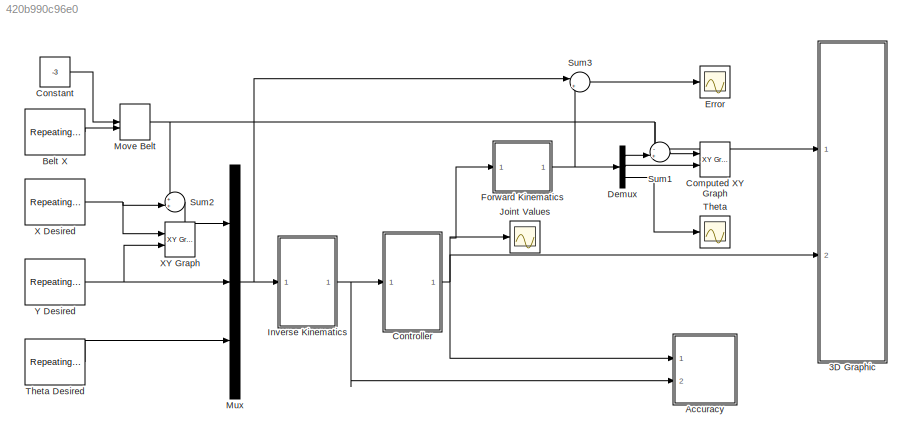
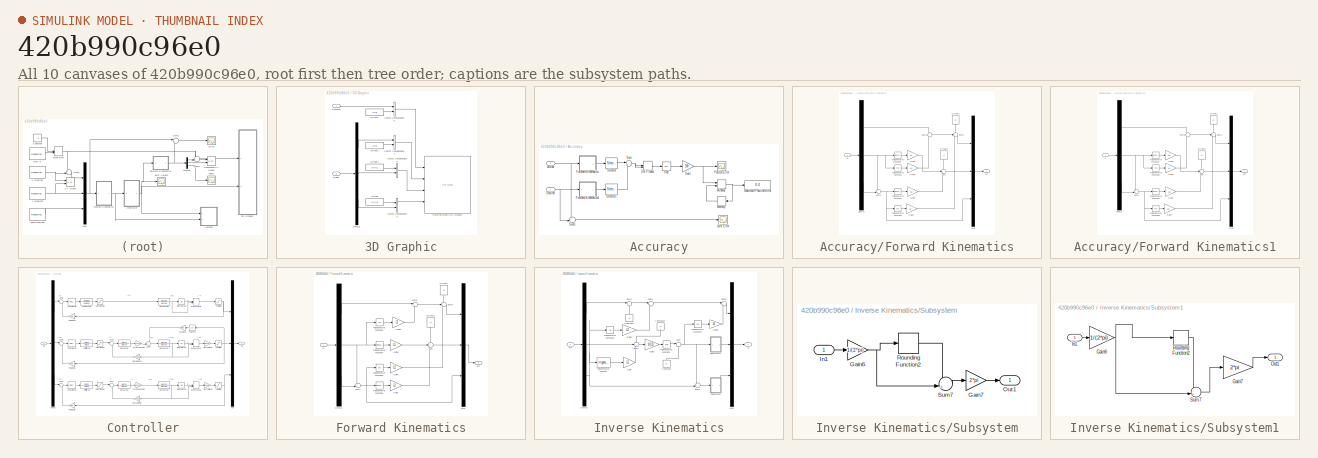
[diagram: thumbnail index - all 10 canvases of the model, root first then tree order]
MODEL slx_420b990c96e0
KIND model
CONFIG AbsTol = auto
CONFIG EnableMultiTasking = on
CONFIG FixedStep = auto
CONFIG InitFcn = Factory
CONFIG MaxStep = auto
CONFIG MinStep = auto
CONFIG PreLoadFcn = Factory
CONFIG RelTol = 1e-3
CONFIG SampleTimeConstraint = Unconstrained
CONFIG Solver = ode45
CONFIG SolverName = ode45
CONFIG StartTime = 0.0
CONFIG StopTime = 60
BLOCK [SubSystem] 3D Graphic
  Ports = [2]
  RequestExecContextInheritance = off
  Variant = off
BLOCK [Inport] 3D Graphic/Conveyor
  IconDisplay = Port number
BLOCK [Demux] 3D Graphic/Demux
  DisplayOption = bar
  Outputs = 3
  Ports = [1, 3]
BLOCK [Constant] 3D Graphic/Offset
  Value = [0 0 1]
BLOCK [Constant] 3D Graphic/Offset1
  Value = [0 0 1]
BLOCK [Constant] 3D Graphic/Offset2
  Value = [0 0]
BLOCK [Constant] 3D Graphic/Offset3
  Value = [0 0]
BLOCK [Reference] 3D Graphic/Painting Booth 3-D Graphic  REF=vrlib/VR Sink
  InstantiateOnLoad = on
  Ports = [4]
  SourceBlock = vrlib/VR Sink
  SourceType = Virtual Reality Sink
BLOCK [Inport] 3D Graphic/Robot
  IconDisplay = Port number
  Port = 2
BLOCK [Concatenate] 3D Graphic/Vector Concatenate1
  Ports = [2, 1]
BLOCK [Concatenate] 3D Graphic/Vector Concatenate2
  Ports = [2, 1]
BLOCK [Concatenate] 3D Graphic/Vector Concatenate3
  Ports = [2, 1]
BLOCK [Concatenate] 3D Graphic/Vector Concatenate5
  Ports = [2, 1]
BLOCK [SubSystem] Accuracy
  Ports = [2]
  RequestExecContextInheritance = off
  Variant = off
BLOCK [Inport] Accuracy/Actual
  IconDisplay = Port number
BLOCK [Inport] Accuracy/Desired
  IconDisplay = Port number
  Port = 2
BLOCK [DotProduct] Accuracy/Dot Product
  OutDataTypeStr = Inherit: Inherit via internal rule
BLOCK [SubSystem] Accuracy/Forward Kinematics
  Ports = [1, 1]
  RequestExecContextInheritance = off
  Variant = off
BLOCK [Demux] Accuracy/Forward Kinematics/Demux
  DisplayOption = bar
  Outputs = 3
  Ports = [1, 3]
BLOCK [Gain] Accuracy/Forward Kinematics/Gain1
  Gain = L2
  OutDataTypeStr = Inherit: Inherit via internal rule
  ParamDataTypeStr = Inherit: Inherit via internal rule
  SaturateOnIntegerOverflow = off
BLOCK [Gain] Accuracy/Forward Kinematics/Gain3
  Gain = L1
  OutDataTypeStr = Inherit: Inherit via internal rule
  ParamDataTypeStr = Inherit: Inherit via internal rule
  SaturateOnIntegerOverflow = off
BLOCK [Gain] Accuracy/Forward Kinematics/Gain4
  Gain = L2
  OutDataTypeStr = Inherit: Inherit via internal rule
  ParamDataTypeStr = Inherit: Inherit via internal rule
  SaturateOnIntegerOverflow = off
BLOCK [Gain] Accuracy/Forward Kinematics/Gain5
  Gain = L1
  OutDataTypeStr = Inherit: Inherit via internal rule
  ParamDataTypeStr = Inherit: Inherit via internal rule
  SaturateOnIntegerOverflow = off
BLOCK [Mux] Accuracy/Forward Kinematics/Mux
  DisplayOption = bar
  Inputs = 3
  Ports = [3, 1]
BLOCK [Constant] Accuracy/Forward Kinematics/Offset1
  Value = L2
BLOCK [Constant] Accuracy/Forward Kinematics/Offset2
  Value = L1
BLOCK [Inport] Accuracy/Forward Kinematics/Q
  IconDisplay = Port number
BLOCK [Sum] Accuracy/Forward Kinematics/Sum
  IconShape = round
  InputSameDT = off
  Inputs = +++
  OutDataTypeStr = Inherit: Inherit via internal rule
  Ports = [3, 1]
  SaturateOnIntegerOverflow = off
BLOCK [Sum] Accuracy/Forward Kinematics/Sum1
  IconShape = round
  InputSameDT = off
  Inputs = ++|
  OutDataTypeStr = Inherit: Inherit via internal rule
  Ports = [2, 1]
  SaturateOnIntegerOverflow = off
BLOCK [Sum] Accuracy/Forward Kinematics/Sum5
  IconShape = round
  InputSameDT = off
  Inputs = +|+
  OutDataTypeStr = Inherit: Inherit via internal rule
  Ports = [2, 1]
  SaturateOnIntegerOverflow = off
BLOCK [Sum] Accuracy/Forward Kinematics/Sum6
  IconShape = round
  InputSameDT = off
  Inputs = -++
  OutDataTypeStr = Inherit: Inherit via internal rule
  Ports = [3, 1]
  SaturateOnIntegerOverflow = off
BLOCK [Trigonometry] Accuracy/Forward Kinematics/Trigonometric Function1
  Ports = [1, 1]
BLOCK [Trigonometry] Accuracy/Forward Kinematics/Trigonometric Function2
  Operator = cos
  Ports = [1, 1]
BLOCK [Trigonometry] Accuracy/Forward Kinematics/Trigonometric Function3
  Operator = cos
  Ports = [1, 1]
BLOCK [Trigonometry] Accuracy/Forward Kinematics/Trigonometric Function4
  Ports = [1, 1]
BLOCK [Outport] Accuracy/Forward Kinematics/XYT
  IconDisplay = Port number
BLOCK [SubSystem] Accuracy/Forward Kinematics1
  Ports = [1, 1]
  RequestExecContextInheritance = off
  Variant = off
BLOCK [Demux] Accuracy/Forward Kinematics1/Demux
  DisplayOption = bar
  Outputs = 3
  Ports = [1, 3]
BLOCK [Gain] Accuracy/Forward Kinematics1/Gain1
  Gain = L2
  OutDataTypeStr = Inherit: Inherit via internal rule
  ParamDataTypeStr = Inherit: Inherit via internal rule
  SaturateOnIntegerOverflow = off
BLOCK [Gain] Accuracy/Forward Kinematics1/Gain3
  Gain = L1
  OutDataTypeStr = Inherit: Inherit via internal rule
  ParamDataTypeStr = Inherit: Inherit via internal rule
  SaturateOnIntegerOverflow = off
BLOCK [Gain] Accuracy/Forward Kinematics1/Gain4
  Gain = L2
  OutDataTypeStr = Inherit: Inherit via internal rule
  ParamDataTypeStr = Inherit: Inherit via internal rule
  SaturateOnIntegerOverflow = off
BLOCK [Gain] Accuracy/Forward Kinematics1/Gain5
  Gain = L1
  OutDataTypeStr = Inherit: Inherit via internal rule
  ParamDataTypeStr = Inherit: Inherit via internal rule
  SaturateOnIntegerOverflow = off
BLOCK [Mux] Accuracy/Forward Kinematics1/Mux
  DisplayOption = bar
  Inputs = 3
  Ports = [3, 1]
BLOCK [Constant] Accuracy/Forward Kinematics1/Offset1
  Value = L2
BLOCK [Constant] Accuracy/Forward Kinematics1/Offset2
  Value = L1
BLOCK [Inport] Accuracy/Forward Kinematics1/Q
  IconDisplay = Port number
BLOCK [Sum] Accuracy/Forward Kinematics1/Sum
  IconShape = round
  InputSameDT = off
  Inputs = +++
  OutDataTypeStr = Inherit: Inherit via internal rule
  Ports = [3, 1]
  SaturateOnIntegerOverflow = off
BLOCK [Sum] Accuracy/Forward Kinematics1/Sum1
  IconShape = round
  InputSameDT = off
  Inputs = ++|
  OutDataTypeStr = Inherit: Inherit via internal rule
  Ports = [2, 1]
  SaturateOnIntegerOverflow = off
BLOCK [Sum] Accuracy/Forward Kinematics1/Sum5
  IconShape = round
  InputSameDT = off
  Inputs = +|+
  OutDataTypeStr = Inherit: Inherit via internal rule
  Ports = [2, 1]
  SaturateOnIntegerOverflow = off
BLOCK [Sum] Accuracy/Forward Kinematics1/Sum6
  IconShape = round
  InputSameDT = off
  Inputs = -++
  OutDataTypeStr = Inherit: Inherit via internal rule
  Ports = [3, 1]
  SaturateOnIntegerOverflow = off
BLOCK [Trigonometry] Accuracy/Forward Kinematics1/Trigonometric Function1
  Ports = [1, 1]
BLOCK [Trigonometry] Accuracy/Forward Kinematics1/Trigonometric Function2
  Operator = cos
  Ports = [1, 1]
BLOCK [Trigonometry] Accuracy/Forward Kinematics1/Trigonometric Function3
  Operator = cos
  Ports = [1, 1]
BLOCK [Trigonometry] Accuracy/Forward Kinematics1/Trigonometric Function4
  Ports = [1, 1]
BLOCK [Outport] Accuracy/Forward Kinematics1/XYT
  IconDisplay = Port number
BLOCK [Gain] Accuracy/Gain
  Gain = 100
  OutDataTypeStr = Inherit: Inherit via internal rule
  ParamDataTypeStr = Inherit: Inherit via internal rule
  SaturateOnIntegerOverflow = off
BLOCK [Scope] Accuracy/Joint Error
  NumInputPorts = 1
  Ports = [1]
  ScopeSpecificationString = Simulink.scopes.TimeScopeBlockCfg('CurrentConfiguration', extmgr.ConfigurationSet(extmgr.Configuration('Core','General UI',true),extmgr.Configuration('Core','Source UI',true),extmgr.Configuration('Sources','WiredSimulink',true,'DataLoggingVariableName','ScopeData3','DataLoggingLimitDataPoints',true,'DataLoggingSaveFormat','Array','DataLoggingDecimation','1','DataLoggingDecimateData',true),extmgr.C...<+1730ch>
BLOCK [Display] Accuracy/Maximum Position Error
  Decimation = 1
  Ports = [1]
BLOCK [Memory] Accuracy/Memory
BLOCK [MinMax] Accuracy/MinMax
  Function = max
  InputSameDT = off
  Inputs = 2
  Ports = [2, 1]
  SaturateOnIntegerOverflow = off
BLOCK [Scope] Accuracy/Positon Error
  NumInputPorts = 1
  Ports = [1]
  ScopeSpecificationString = Simulink.scopes.TimeScopeBlockCfg('CurrentConfiguration', extmgr.ConfigurationSet(extmgr.Configuration('Core','General UI',true),extmgr.Configuration('Core','Source UI',true),extmgr.Configuration('Sources','WiredSimulink',true,'DataLoggingVariableName','ScopeData5','DataLoggingLimitDataPoints',true,'DataLoggingSaveFormat','Array','DataLoggingDecimation','1','DataLoggingDecimateData',true),extmgr.C...<+1639ch>
BLOCK [Selector] Accuracy/Selector
  IndexOptions = Index vector (dialog)
  Indices = [1 2]
  InputPortWidth = 3
  OutputSizes = 1
  Ports = [1, 1]
BLOCK [Selector] Accuracy/Selector1
  IndexOptions = Index vector (dialog)
  Indices = [1 2]
  InputPortWidth = 3
  OutputSizes = 1
  Ports = [1, 1]
BLOCK [Sqrt] Accuracy/Sqrt
BLOCK [Sum] Accuracy/Sum
  IconShape = round
  InputSameDT = off
  Inputs = |+-
  OutDataTypeStr = Inherit: Inherit via internal rule
  Ports = [2, 1]
  SaturateOnIntegerOverflow = off
BLOCK [Sum] Accuracy/Sum1
  IconShape = round
  InputSameDT = off
  Inputs = +-|
  OutDataTypeStr = Inherit: Inherit via internal rule
  Ports = [2, 1]
  SaturateOnIntegerOverflow = off
BLOCK [Reference] Belt X  REF=simulink/Sources/Repeating
Sequence
Interpolated
  Ports = [0, 1]
  SourceBlock = simulink/Sources/Repeating\nSequence\nInterpolated
  SourceType = Repeating Sequence Interpolated
BLOCK [Reference] Computed XY Graph  REF=simulink/Sinks/XY Graph
  Ports = [2]
  SourceBlock = simulink/Sinks/XY Graph
  SourceType = XY scope.
BLOCK [Constant] Constant
  Value = -3
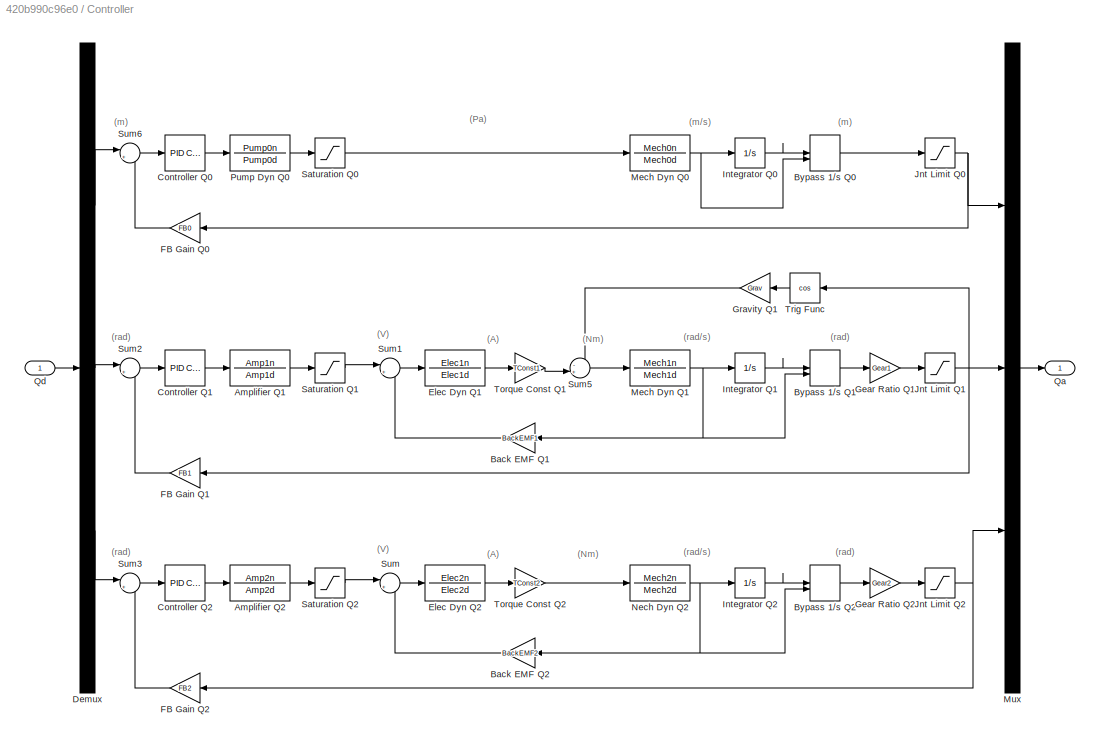
BLOCK [SubSystem] Controller
  Ports = [1, 1]
  RequestExecContextInheritance = off
  Variant = off
BLOCK [TransferFcn] Controller/Amplifier Q1
  Denominator = Amp1d
  Numerator = Amp1n
BLOCK [TransferFcn] Controller/Amplifier Q2
  Denominator = Amp2d
  Numerator = Amp2n
BLOCK [Gain] Controller/Back EMF Q1
  Gain = BackEMF1
  OutDataTypeStr = Inherit: Inherit via internal rule
  ParamDataTypeStr = Inherit: Inherit via internal rule
  SaturateOnIntegerOverflow = off
BLOCK [Gain] Controller/Back EMF Q2
  Gain = BackEMF2
  OutDataTypeStr = Inherit: Inherit via internal rule
  ParamDataTypeStr = Inherit: Inherit via internal rule
  SaturateOnIntegerOverflow = off
BLOCK [ManualSwitch] Controller/Bypass 1//s Q0
BLOCK [ManualSwitch] Controller/Bypass 1//s Q1
BLOCK [ManualSwitch] Controller/Bypass 1//s Q2
BLOCK [Reference] Controller/Controller Q0  REF=simulink/Continuous/PID Controller
  Ports = [1, 1]
  SourceBlock = simulink/Continuous/PID Controller
  SourceType = PID 1dof
BLOCK [Reference] Controller/Controller Q1  REF=simulink/Continuous/PID Controller
  Ports = [1, 1]
  SourceBlock = simulink/Continuous/PID Controller
  SourceType = PID 1dof
BLOCK [Reference] Controller/Controller Q2  REF=simulink/Continuous/PID Controller
  Ports = [1, 1]
  SourceBlock = simulink/Continuous/PID Controller
  SourceType = PID 1dof
BLOCK [Demux] Controller/Demux
  DisplayOption = bar
  Outputs = 3
  Ports = [1, 3]
BLOCK [TransferFcn] Controller/Elec Dyn Q1
  Denominator = Elec1d
  Numerator = Elec1n
BLOCK [TransferFcn] Controller/Elec Dyn Q2
  Denominator = Elec2d
  Numerator = Elec2n
BLOCK [Gain] Controller/FB Gain Q0
  Gain = FB0
  OutDataTypeStr = Inherit: Inherit via internal rule
  ParamDataTypeStr = Inherit: Inherit via internal rule
  SaturateOnIntegerOverflow = off
BLOCK [Gain] Controller/FB Gain Q1
  Gain = FB1
  OutDataTypeStr = Inherit: Inherit via internal rule
  ParamDataTypeStr = Inherit: Inherit via internal rule
  SaturateOnIntegerOverflow = off
BLOCK [Gain] Controller/FB Gain Q2
  Gain = FB2
  OutDataTypeStr = Inherit: Inherit via internal rule
  ParamDataTypeStr = Inherit: Inherit via internal rule
  SaturateOnIntegerOverflow = off
BLOCK [Gain] Controller/Gear Ratio Q1
  Gain = Gear1
  OutDataTypeStr = Inherit: Inherit via internal rule
  ParamDataTypeStr = Inherit: Inherit via internal rule
  SaturateOnIntegerOverflow = off
BLOCK [Gain] Controller/Gear Ratio Q2
  Gain = Gear2
  OutDataTypeStr = Inherit: Inherit via internal rule
  ParamDataTypeStr = Inherit: Inherit via internal rule
  SaturateOnIntegerOverflow = off
BLOCK [Gain] Controller/Gravity Q1
  Gain = Grav
  OutDataTypeStr = Inherit: Inherit via internal rule
  ParamDataTypeStr = Inherit: Inherit via internal rule
  SaturateOnIntegerOverflow = off
BLOCK [Integrator] Controller/Integrator Q0
  InitialCondition = InitQ0+StartX
  Ports = [1, 1]
BLOCK [Integrator] Controller/Integrator Q1
  InitialCondition = InitQ1
  Ports = [1, 1]
BLOCK [Integrator] Controller/Integrator Q2
  InitialCondition = InitQ2
  Ports = [1, 1]
BLOCK [Saturate] Controller/Jnt Limit Q0
  InputPortMap = u0
  LowerLimit = JntMin0
  Ports = [1, 1]
  UpperLimit = JntMax0
BLOCK [Saturate] Controller/Jnt Limit Q1
  InputPortMap = u0
  LowerLimit = JntMin1
  Ports = [1, 1]
  UpperLimit = JntMax1
BLOCK [Saturate] Controller/Jnt Limit Q2
  InputPortMap = u0
  LowerLimit = JntMin2
  Ports = [1, 1]
  UpperLimit = JntMax2
BLOCK [TransferFcn] Controller/Mech Dyn Q0
  Denominator = Mech0d
  Numerator = Mech0n
BLOCK [TransferFcn] Controller/Mech Dyn Q1
  Denominator = Mech1d
  Numerator = Mech1n
BLOCK [Mux] Controller/Mux
  DisplayOption = bar
  Inputs = 3
  Ports = [3, 1]
BLOCK [TransferFcn] Controller/Nech Dyn Q2
  Denominator = Mech2d
  Numerator = Mech2n
BLOCK [TransferFcn] Controller/Pump Dyn Q0
  Denominator = Pump0d
  Numerator = Pump0n
BLOCK [Outport] Controller/Qa
  IconDisplay = Port number
BLOCK [Inport] Controller/Qd
  IconDisplay = Port number
BLOCK [Saturate] Controller/Saturation Q0
  InputPortMap = u0
  LowerLimit = -Pump0sat
  Ports = [1, 1]
  UpperLimit = Pump0sat
BLOCK [Saturate] Controller/Saturation Q1
  InputPortMap = u0
  LowerLimit = -AmpSat1
  Ports = [1, 1]
  UpperLimit = AmpSat1
BLOCK [Saturate] Controller/Saturation Q2
  InputPortMap = u0
  LowerLimit = -AmpSat2
  Ports = [1, 1]
  UpperLimit = AmpSat2
BLOCK [Sum] Controller/Sum
  IconShape = round
  InputSameDT = off
  Inputs = |+-
  OutDataTypeStr = Inherit: Inherit via internal rule
  Ports = [2, 1]
  SaturateOnIntegerOverflow = off
BLOCK [Sum] Controller/Sum1
  IconShape = round
  InputSameDT = off
  Inputs = |+-
  OutDataTypeStr = Inherit: Inherit via internal rule
  Ports = [2, 1]
  SaturateOnIntegerOverflow = off
BLOCK [Sum] Controller/Sum2
  IconShape = round
  InputSameDT = off
  Inputs = |+-
  OutDataTypeStr = Inherit: Inherit via internal rule
  Ports = [2, 1]
  SaturateOnIntegerOverflow = off
BLOCK [Sum] Controller/Sum3
  IconShape = round
  InputSameDT = off
  Inputs = |+-
  OutDataTypeStr = Inherit: Inherit via internal rule
  Ports = [2, 1]
  SaturateOnIntegerOverflow = off
BLOCK [Sum] Controller/Sum5
  IconShape = round
  InputSameDT = off
  Inputs = -+|
  OutDataTypeStr = Inherit: Inherit via internal rule
  Ports = [2, 1]
  SaturateOnIntegerOverflow = off
BLOCK [Sum] Controller/Sum6
  IconShape = round
  InputSameDT = off
  Inputs = |+-
  OutDataTypeStr = Inherit: Inherit via internal rule
  Ports = [2, 1]
  SaturateOnIntegerOverflow = off
BLOCK [Gain] Controller/Torque Const Q1
  Gain = TConst1
  OutDataTypeStr = Inherit: Inherit via internal rule
  ParamDataTypeStr = Inherit: Inherit via internal rule
  SaturateOnIntegerOverflow = off
BLOCK [Gain] Controller/Torque Const Q2
  Gain = TConst2
  OutDataTypeStr = Inherit: Inherit via internal rule
  ParamDataTypeStr = Inherit: Inherit via internal rule
  SaturateOnIntegerOverflow = off
BLOCK [Trigonometry] Controller/Trig Func
  Operator = cos
  Ports = [1, 1]
BLOCK [Demux] Demux
  DisplayOption = bar
  Outputs = 3
  Ports = [1, 3]
BLOCK [Scope] Error
  NumInputPorts = 1
  Ports = [1]
  ScopeSpecificationString = C++SS(StrPVP('SaveName','ScopeData1'))
BLOCK [SubSystem] Forward Kinematics
  Ports = [1, 1]
  RequestExecContextInheritance = off
  Variant = off
BLOCK [Demux] Forward Kinematics/Demux
  DisplayOption = bar
  Outputs = 3
  Ports = [1, 3]
BLOCK [Gain] Forward Kinematics/Gain1
  Gain = L2
  OutDataTypeStr = Inherit: Inherit via internal rule
  ParamDataTypeStr = Inherit: Inherit via internal rule
  SaturateOnIntegerOverflow = off
BLOCK [Gain] Forward Kinematics/Gain3
  Gain = L1
  OutDataTypeStr = Inherit: Inherit via internal rule
  ParamDataTypeStr = Inherit: Inherit via internal rule
  SaturateOnIntegerOverflow = off
BLOCK [Gain] Forward Kinematics/Gain4
  Gain = L2
  OutDataTypeStr = Inherit: Inherit via internal rule
  ParamDataTypeStr = Inherit: Inherit via internal rule
  SaturateOnIntegerOverflow = off
BLOCK [Gain] Forward Kinematics/Gain5
  Gain = L1
  OutDataTypeStr = Inherit: Inherit via internal rule
  ParamDataTypeStr = Inherit: Inherit via internal rule
  SaturateOnIntegerOverflow = off
BLOCK [Mux] Forward Kinematics/Mux
  DisplayOption = bar
  Inputs = 3
  Ports = [3, 1]
BLOCK [Constant] Forward Kinematics/Offset1
  Value = L2
BLOCK [Constant] Forward Kinematics/Offset2
  Value = L1
BLOCK [Inport] Forward Kinematics/Q
  IconDisplay = Port number
BLOCK [Sum] Forward Kinematics/Sum
  IconShape = round
  InputSameDT = off
  Inputs = +++
  OutDataTypeStr = Inherit: Inherit via internal rule
  Ports = [3, 1]
  SaturateOnIntegerOverflow = off
BLOCK [Sum] Forward Kinematics/Sum1
  IconShape = round
  InputSameDT = off
  Inputs = ++|
  OutDataTypeStr = Inherit: Inherit via internal rule
  Ports = [2, 1]
  SaturateOnIntegerOverflow = off
BLOCK [Sum] Forward Kinematics/Sum5
  IconShape = round
  InputSameDT = off
  Inputs = |++
  OutDataTypeStr = Inherit: Inherit via internal rule
  Ports = [2, 1]
  SaturateOnIntegerOverflow = off
BLOCK [Sum] Forward Kinematics/Sum6
  IconShape = round
  InputSameDT = off
  Inputs = -++
  OutDataTypeStr = Inherit: Inherit via internal rule
  Ports = [3, 1]
  SaturateOnIntegerOverflow = off
BLOCK [Trigonometry] Forward Kinematics/Trigonometric Function1
  Ports = [1, 1]
BLOCK [Trigonometry] Forward Kinematics/Trigonometric Function2
  Operator = cos
  Ports = [1, 1]
BLOCK [Trigonometry] Forward Kinematics/Trigonometric Function3
  Operator = cos
  Ports = [1, 1]
BLOCK [Trigonometry] Forward Kinematics/Trigonometric Function4
  Ports = [1, 1]
BLOCK [Outport] Forward Kinematics/XYT
  IconDisplay = Port number
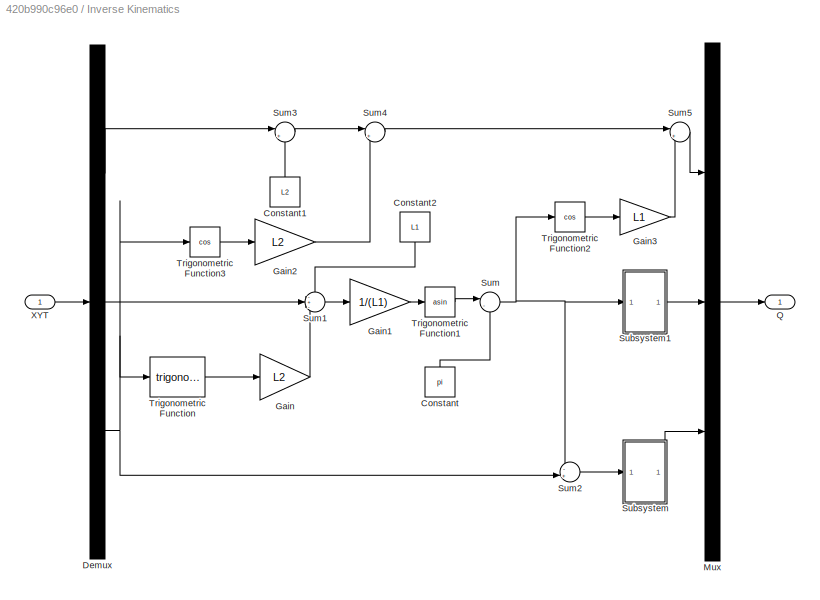
BLOCK [SubSystem] Inverse Kinematics
  Ports = [1, 1]
  RequestExecContextInheritance = off
  Variant = off
BLOCK [Constant] Inverse Kinematics/Constant
  Value = pi
BLOCK [Constant] Inverse Kinematics/Constant1
  Value = L2
BLOCK [Constant] Inverse Kinematics/Constant2
  Value = L1
BLOCK [Demux] Inverse Kinematics/Demux
  DisplayOption = bar
  Outputs = 3
  Ports = [1, 3]
BLOCK [Gain] Inverse Kinematics/Gain
  Gain = L2
  OutDataTypeStr = Inherit: Inherit via internal rule
  ParamDataTypeStr = Inherit: Inherit via internal rule
  SaturateOnIntegerOverflow = off
BLOCK [Gain] Inverse Kinematics/Gain1
  Gain = 1/(L1)
  OutDataTypeStr = Inherit: Inherit via internal rule
  ParamDataTypeStr = Inherit: Inherit via internal rule
  SaturateOnIntegerOverflow = off
BLOCK [Gain] Inverse Kinematics/Gain2
  Gain = L2
  OutDataTypeStr = Inherit: Inherit via internal rule
  ParamDataTypeStr = Inherit: Inherit via internal rule
  SaturateOnIntegerOverflow = off
BLOCK [Gain] Inverse Kinematics/Gain3
  Gain = L1
  OutDataTypeStr = Inherit: Inherit via internal rule
  ParamDataTypeStr = Inherit: Inherit via internal rule
  SaturateOnIntegerOverflow = off
BLOCK [Mux] Inverse Kinematics/Mux
  DisplayOption = bar
  Inputs = 3
  Ports = [3, 1]
BLOCK [Outport] Inverse Kinematics/Q
  IconDisplay = Port number
BLOCK [SubSystem] Inverse Kinematics/Subsystem
  Ports = [1, 1]
  RequestExecContextInheritance = off
  Variant = off
BLOCK [Gain] Inverse Kinematics/Subsystem/Gain6
  Gain = 1/(2*pi)
  OutDataTypeStr = Inherit: Inherit via internal rule
  ParamDataTypeStr = Inherit: Inherit via internal rule
  SaturateOnIntegerOverflow = off
BLOCK [Gain] Inverse Kinematics/Subsystem/Gain7
  Gain = 2*pi
  OutDataTypeStr = Inherit: Inherit via internal rule
  ParamDataTypeStr = Inherit: Inherit via internal rule
  SaturateOnIntegerOverflow = off
BLOCK [Inport] Inverse Kinematics/Subsystem/In1
  IconDisplay = Port number
BLOCK [Outport] Inverse Kinematics/Subsystem/Out1
  IconDisplay = Port number
BLOCK [Rounding] Inverse Kinematics/Subsystem/Rounding Function2
  Operator = round
BLOCK [Sum] Inverse Kinematics/Subsystem/Sum7
  IconShape = round
  InputSameDT = off
  Inputs = -+|
  OutDataTypeStr = Inherit: Inherit via internal rule
  Ports = [2, 1]
  SaturateOnIntegerOverflow = off
BLOCK [SubSystem] Inverse Kinematics/Subsystem1
  Ports = [1, 1]
  RequestExecContextInheritance = off
  Variant = off
BLOCK [Gain] Inverse Kinematics/Subsystem1/Gain6
  Gain = 1/(2*pi)
  OutDataTypeStr = Inherit: Inherit via internal rule
  ParamDataTypeStr = Inherit: Inherit via internal rule
  SaturateOnIntegerOverflow = off
BLOCK [Gain] Inverse Kinematics/Subsystem1/Gain7
  Gain = 2*pi
  OutDataTypeStr = Inherit: Inherit via internal rule
  ParamDataTypeStr = Inherit: Inherit via internal rule
  SaturateOnIntegerOverflow = off
BLOCK [Inport] Inverse Kinematics/Subsystem1/In1
  IconDisplay = Port number
BLOCK [Outport] Inverse Kinematics/Subsystem1/Out1
  IconDisplay = Port number
BLOCK [Rounding] Inverse Kinematics/Subsystem1/Rounding Function2
  Operator = round
BLOCK [Sum] Inverse Kinematics/Subsystem1/Sum7
  IconShape = round
  InputSameDT = off
  Inputs = -+|
  OutDataTypeStr = Inherit: Inherit via internal rule
  Ports = [2, 1]
  SaturateOnIntegerOverflow = off
BLOCK [Sum] Inverse Kinematics/Sum
  IconShape = round
  InputSameDT = off
  Inputs = |-+
  OutDataTypeStr = Inherit: Inherit via internal rule
  Ports = [2, 1]
  SaturateOnIntegerOverflow = off
BLOCK [Sum] Inverse Kinematics/Sum1
  IconShape = round
  InputSameDT = off
  Inputs = -+-
  OutDataTypeStr = Inherit: Inherit via internal rule
  Ports = [3, 1]
  SaturateOnIntegerOverflow = off
BLOCK [Sum] Inverse Kinematics/Sum2
  IconShape = round
  InputSameDT = off
  Inputs = -+|
  OutDataTypeStr = Inherit: Inherit via internal rule
  Ports = [2, 1]
  SaturateOnIntegerOverflow = off
BLOCK [Sum] Inverse Kinematics/Sum3
  IconShape = round
  InputSameDT = off
  Inputs = |++
  OutDataTypeStr = Inherit: Inherit via internal rule
  Ports = [2, 1]
  SaturateOnIntegerOverflow = off
BLOCK [Sum] Inverse Kinematics/Sum4
  IconShape = round
  InputSameDT = off
  Inputs = |+-
  OutDataTypeStr = Inherit: Inherit via internal rule
  Ports = [2, 1]
  SaturateOnIntegerOverflow = off
BLOCK [Sum] Inverse Kinematics/Sum5
  IconShape = round
  InputSameDT = off
  Inputs = |+-
  OutDataTypeStr = Inherit: Inherit via internal rule
  Ports = [2, 1]
  SaturateOnIntegerOverflow = off
BLOCK [Trigonometry] Inverse Kinematics/Trigonometric Function
  Ports = [1, 1]
BLOCK [Trigonometry] Inverse Kinematics/Trigonometric Function1
  Operator = asin
  Ports = [1, 1]
BLOCK [Trigonometry] Inverse Kinematics/Trigonometric Function2
  Operator = cos
  Ports = [1, 1]
BLOCK [Trigonometry] Inverse Kinematics/Trigonometric Function3
  Operator = cos
  Ports = [1, 1]
BLOCK [Inport] Inverse Kinematics/XYT
  IconDisplay = Port number
BLOCK [Scope] Joint Values
  NumInputPorts = 1
  Ports = [1]
  ScopeSpecificationString = Simulink.scopes.TimeScopeBlockCfg('CurrentConfiguration', extmgr.ConfigurationSet(extmgr.Configuration('Core','General UI',true),extmgr.Configuration('Core','Source UI',true),extmgr.Configuration('Sources','WiredSimulink',true,'DataLoggingVariableName','ScopeData2','DataLoggingLimitDataPoints',true,'DataLoggingSaveFormat','Array','DataLoggingDecimation','1','DataLoggingDecimateData',true),extmgr.C...<+1675ch>
BLOCK [ManualSwitch] Move Belt
  CurrentSetting = 0
BLOCK [Mux] Mux
  DisplayOption = bar
  Inputs = 3
  Ports = [3, 1]
BLOCK [Sum] Sum1
  IconShape = round
  InputSameDT = off
  Inputs = -+|
  OutDataTypeStr = Inherit: Inherit via internal rule
  Ports = [2, 1]
  SaturateOnIntegerOverflow = off
BLOCK [Sum] Sum2
  IconShape = round
  InputSameDT = off
  Inputs = ++|
  OutDataTypeStr = Inherit: Inherit via internal rule
  Ports = [2, 1]
  SaturateOnIntegerOverflow = off
BLOCK [Sum] Sum3
  IconShape = round
  InputSameDT = off
  Inputs = |+-
  OutDataTypeStr = Inherit: Inherit via internal rule
  Ports = [2, 1]
  SaturateOnIntegerOverflow = off
BLOCK [Scope] Theta
  NumInputPorts = 1
  Ports = [1]
  ScopeSpecificationString = C++SS(StrPVP('SaveName','ScopeData3'))
BLOCK [Reference] Theta Desired  REF=simulink/Sources/Repeating
Sequence
Interpolated
  Ports = [0, 1]
  SourceBlock = simulink/Sources/Repeating\nSequence\nInterpolated
  SourceType = Repeating Sequence Interpolated
BLOCK [Reference] X Desired  REF=simulink/Sources/Repeating
Sequence
Interpolated
  Ports = [0, 1]
  SourceBlock = simulink/Sources/Repeating\nSequence\nInterpolated
  SourceType = Repeating Sequence Interpolated
BLOCK [Reference] XY Graph  REF=simulink/Sinks/XY Graph
  Ports = [2]
  SourceBlock = simulink/Sinks/XY Graph
  SourceType = XY scope.
BLOCK [Reference] Y Desired  REF=simulink/Sources/Repeating
Sequence
Interpolated
  Ports = [0, 1]
  SourceBlock = simulink/Sources/Repeating\nSequence\nInterpolated
  SourceType = Repeating Sequence Interpolated
ANNOTATION Controller: (A)
ANNOTATION Controller: (Nm)
ANNOTATION Controller: (Pa)
ANNOTATION Controller: (V)
ANNOTATION Controller: (m)
ANNOTATION Controller: (m/s)
ANNOTATION Controller: (rad)
ANNOTATION Controller: (rad/s)
LINE 3D Graphic/Conveyor:1 -> 3D Graphic/Vector Concatenate5:1
LINE 3D Graphic/Demux:1 -> 3D Graphic/Vector Concatenate1:1
LINE 3D Graphic/Demux:2 -> 3D Graphic/Vector Concatenate2:2
LINE 3D Graphic/Demux:3 -> 3D Graphic/Vector Concatenate3:2
LINE 3D Graphic/Offset1:1 -> 3D Graphic/Vector Concatenate2:1
LINE 3D Graphic/Offset2:1 -> 3D Graphic/Vector Concatenate1:2
LINE 3D Graphic/Offset3:1 -> 3D Graphic/Vector Concatenate5:2
LINE 3D Graphic/Offset:1 -> 3D Graphic/Vector Concatenate3:1
LINE 3D Graphic/Robot:1 -> 3D Graphic/Demux:1
LINE 3D Graphic/Vector Concatenate1:1 -> 3D Graphic/Painting Booth 3-D Graphic:2
LINE 3D Graphic/Vector Concatenate2:1 -> 3D Graphic/Painting Booth 3-D Graphic:3
LINE 3D Graphic/Vector Concatenate3:1 -> 3D Graphic/Painting Booth 3-D Graphic:4
LINE 3D Graphic/Vector Concatenate5:1 -> 3D Graphic/Painting Booth 3-D Graphic:1
NET Accuracy/Actual:1 -> Accuracy/Forward Kinematics:1, Accuracy/Sum1:1
NET Accuracy/Desired:1 -> Accuracy/Forward Kinematics1:1, Accuracy/Sum1:2
LINE Accuracy/Dot Product:1 -> Accuracy/Sqrt:1
LINE Accuracy/Forward Kinematics/Demux:1 -> Accuracy/Forward Kinematics/Sum5:1
NET Accuracy/Forward Kinematics/Demux:2 -> Accuracy/Forward Kinematics/Sum1:1, Accuracy/Forward Kinematics/Trigonometric Function2:1, Accuracy/Forward Kinematics/Trigonometric Function4:1
LINE Accuracy/Forward Kinematics/Demux:3 -> Accuracy/Forward Kinematics/Sum1:2
LINE Accuracy/Forward Kinematics/Gain1:1 -> Accuracy/Forward Kinematics/Sum:3
LINE Accuracy/Forward Kinematics/Gain3:1 -> Accuracy/Forward Kinematics/Sum5:2
LINE Accuracy/Forward Kinematics/Gain4:1 -> Accuracy/Forward Kinematics/Sum6:3
LINE Accuracy/Forward Kinematics/Gain5:1 -> Accuracy/Forward Kinematics/Sum:2
LINE Accuracy/Forward Kinematics/Mux:1 -> Accuracy/Forward Kinematics/XYT:1
LINE Accuracy/Forward Kinematics/Offset1:1 -> Accuracy/Forward Kinematics/Sum6:1
LINE Accuracy/Forward Kinematics/Offset2:1 -> Accuracy/Forward Kinematics/Sum:1
LINE Accuracy/Forward Kinematics/Q:1 -> Accuracy/Forward Kinematics/Demux:1
NET Accuracy/Forward Kinematics/Sum1:1 -> Accuracy/Forward Kinematics/Mux:3, Accuracy/Forward Kinematics/Trigonometric Function1:1, Accuracy/Forward Kinematics/Trigonometric Function3:1
LINE Accuracy/Forward Kinematics/Sum5:1 -> Accuracy/Forward Kinematics/Sum6:2
LINE Accuracy/Forward Kinematics/Sum6:1 -> Accuracy/Forward Kinematics/Mux:1
LINE Accuracy/Forward Kinematics/Sum:1 -> Accuracy/Forward Kinematics/Mux:2
LINE Accuracy/Forward Kinematics/Trigonometric Function1:1 -> Accuracy/Forward Kinematics/Gain1:1
LINE Accuracy/Forward Kinematics/Trigonometric Function2:1 -> Accuracy/Forward Kinematics/Gain3:1
LINE Accuracy/Forward Kinematics/Trigonometric Function3:1 -> Accuracy/Forward Kinematics/Gain4:1
LINE Accuracy/Forward Kinematics/Trigonometric Function4:1 -> Accuracy/Forward Kinematics/Gain5:1
LINE Accuracy/Forward Kinematics1/Demux:1 -> Accuracy/Forward Kinematics1/Sum5:1
NET Accuracy/Forward Kinematics1/Demux:2 -> Accuracy/Forward Kinematics1/Sum1:1, Accuracy/Forward Kinematics1/Trigonometric Function2:1, Accuracy/Forward Kinematics1/Trigonometric Function4:1
LINE Accuracy/Forward Kinematics1/Demux:3 -> Accuracy/Forward Kinematics1/Sum1:2
LINE Accuracy/Forward Kinematics1/Gain1:1 -> Accuracy/Forward Kinematics1/Sum:3
LINE Accuracy/Forward Kinematics1/Gain3:1 -> Accuracy/Forward Kinematics1/Sum5:2
LINE Accuracy/Forward Kinematics1/Gain4:1 -> Accuracy/Forward Kinematics1/Sum6:3
LINE Accuracy/Forward Kinematics1/Gain5:1 -> Accuracy/Forward Kinematics1/Sum:2
LINE Accuracy/Forward Kinematics1/Mux:1 -> Accuracy/Forward Kinematics1/XYT:1
LINE Accuracy/Forward Kinematics1/Offset1:1 -> Accuracy/Forward Kinematics1/Sum6:1
LINE Accuracy/Forward Kinematics1/Offset2:1 -> Accuracy/Forward Kinematics1/Sum:1
LINE Accuracy/Forward Kinematics1/Q:1 -> Accuracy/Forward Kinematics1/Demux:1
NET Accuracy/Forward Kinematics1/Sum1:1 -> Accuracy/Forward Kinematics1/Mux:3, Accuracy/Forward Kinematics1/Trigonometric Function1:1, Accuracy/Forward Kinematics1/Trigonometric Function3:1
LINE Accuracy/Forward Kinematics1/Sum5:1 -> Accuracy/Forward Kinematics1/Sum6:2
LINE Accuracy/Forward Kinematics1/Sum6:1 -> Accuracy/Forward Kinematics1/Mux:1
LINE Accuracy/Forward Kinematics1/Sum:1 -> Accuracy/Forward Kinematics1/Mux:2
LINE Accuracy/Forward Kinematics1/Trigonometric Function1:1 -> Accuracy/Forward Kinematics1/Gain1:1
LINE Accuracy/Forward Kinematics1/Trigonometric Function2:1 -> Accuracy/Forward Kinematics1/Gain3:1
LINE Accuracy/Forward Kinematics1/Trigonometric Function3:1 -> Accuracy/Forward Kinematics1/Gain4:1
LINE Accuracy/Forward Kinematics1/Trigonometric Function4:1 -> Accuracy/Forward Kinematics1/Gain5:1
LINE Accuracy/Forward Kinematics1:1 -> Accuracy/Selector1:1
LINE Accuracy/Forward Kinematics:1 -> Accuracy/Selector:1
NET Accuracy/Gain:1 -> Accuracy/MinMax:1, Accuracy/Positon Error:1
LINE Accuracy/Memory:1 -> Accuracy/MinMax:2
NET Accuracy/MinMax:1 -> Accuracy/Maximum Position Error:1, Accuracy/Memory:1
LINE Accuracy/Selector1:1 -> Accuracy/Sum:2
LINE Accuracy/Selector:1 -> Accuracy/Sum:1
LINE Accuracy/Sqrt:1 -> Accuracy/Gain:1
LINE Accuracy/Sum1:1 -> Accuracy/Joint Error:1
NET Accuracy/Sum:1 -> Accuracy/Dot Product:1, Accuracy/Dot Product:2
LINE Belt X:1 -> Move Belt:2
LINE Constant:1 -> Move Belt:1
LINE Controller/Amplifier Q1:1 -> Controller/Saturation Q1:1
LINE Controller/Amplifier Q2:1 -> Controller/Saturation Q2:1
LINE Controller/Back EMF Q1:1 -> Controller/Sum1:2
LINE Controller/Back EMF Q2:1 -> Controller/Sum:2
LINE Controller/Bypass 1//s Q0:1 -> Controller/Jnt Limit Q0:1
LINE Controller/Bypass 1//s Q1:1 -> Controller/Gear Ratio Q1:1
LINE Controller/Bypass 1//s Q2:1 -> Controller/Gear Ratio Q2:1
LINE Controller/Controller Q0:1 -> Controller/Pump Dyn Q0:1
LINE Controller/Controller Q1:1 -> Controller/Amplifier Q1:1
LINE Controller/Controller Q2:1 -> Controller/Amplifier Q2:1
LINE Controller/Demux:1 -> Controller/Sum6:1
LINE Controller/Demux:2 -> Controller/Sum2:1
LINE Controller/Demux:3 -> Controller/Sum3:1
LINE Controller/Elec Dyn Q1:1 -> Controller/Torque Const Q1:1
LINE Controller/Elec Dyn Q2:1 -> Controller/Torque Const Q2:1
LINE Controller/FB Gain Q0:1 -> Controller/Sum6:2
LINE Controller/FB Gain Q1:1 -> Controller/Sum2:2
LINE Controller/FB Gain Q2:1 -> Controller/Sum3:2
LINE Controller/Gear Ratio Q1:1 -> Controller/Jnt Limit Q1:1
LINE Controller/Gear Ratio Q2:1 -> Controller/Jnt Limit Q2:1
LINE Controller/Gravity Q1:1 -> Controller/Sum5:1
LINE Controller/Integrator Q0:1 -> Controller/Bypass 1//s Q0:1
LINE Controller/Integrator Q1:1 -> Controller/Bypass 1//s Q1:1
LINE Controller/Integrator Q2:1 -> Controller/Bypass 1//s Q2:1
NET Controller/Jnt Limit Q0:1 -> Controller/FB Gain Q0:1, Controller/Mux:1
NET Controller/Jnt Limit Q1:1 -> Controller/FB Gain Q1:1, Controller/Mux:2, Controller/Trig Func:1
NET Controller/Jnt Limit Q2:1 -> Controller/FB Gain Q2:1, Controller/Mux:3
NET Controller/Mech Dyn Q0:1 -> Controller/Bypass 1//s Q0:2, Controller/Integrator Q0:1
NET Controller/Mech Dyn Q1:1 -> Controller/Back EMF Q1:1, Controller/Bypass 1//s Q1:2, Controller/Integrator Q1:1
LINE Controller/Mux:1 -> Controller/Qa:1
NET Controller/Nech Dyn Q2:1 -> Controller/Back EMF Q2:1, Controller/Bypass 1//s Q2:2, Controller/Integrator Q2:1
LINE Controller/Pump Dyn Q0:1 -> Controller/Saturation Q0:1
LINE Controller/Qd:1 -> Controller/Demux:1
LINE Controller/Saturation Q0:1 -> Controller/Mech Dyn Q0:1
LINE Controller/Saturation Q1:1 -> Controller/Sum1:1
LINE Controller/Saturation Q2:1 -> Controller/Sum:1
LINE Controller/Sum1:1 -> Controller/Elec Dyn Q1:1
LINE Controller/Sum2:1 -> Controller/Controller Q1:1
LINE Controller/Sum3:1 -> Controller/Controller Q2:1
LINE Controller/Sum5:1 -> Controller/Mech Dyn Q1:1
LINE Controller/Sum6:1 -> Controller/Controller Q0:1
LINE Controller/Sum:1 -> Controller/Elec Dyn Q2:1
LINE Controller/Torque Const Q1:1 -> Controller/Sum5:2
LINE Controller/Torque Const Q2:1 -> Controller/Nech Dyn Q2:1
LINE Controller/Trig Func:1 -> Controller/Gravity Q1:1
NET Controller:1 -> 3D Graphic:2, Accuracy:1, Forward Kinematics:1, Joint Values:1
LINE Demux:1 -> Sum1:2
LINE Demux:2 -> Computed XY Graph:2
LINE Demux:3 -> Theta:1
LINE Forward Kinematics/Demux:1 -> Forward Kinematics/Sum5:1
NET Forward Kinematics/Demux:2 -> Forward Kinematics/Sum1:1, Forward Kinematics/Trigonometric Function2:1, Forward Kinematics/Trigonometric Function4:1
LINE Forward Kinematics/Demux:3 -> Forward Kinematics/Sum1:2
LINE Forward Kinematics/Gain1:1 -> Forward Kinematics/Sum:3
LINE Forward Kinematics/Gain3:1 -> Forward Kinematics/Sum5:2
LINE Forward Kinematics/Gain4:1 -> Forward Kinematics/Sum6:3
LINE Forward Kinematics/Gain5:1 -> Forward Kinematics/Sum:2
LINE Forward Kinematics/Mux:1 -> Forward Kinematics/XYT:1
LINE Forward Kinematics/Offset1:1 -> Forward Kinematics/Sum6:1
LINE Forward Kinematics/Offset2:1 -> Forward Kinematics/Sum:1
LINE Forward Kinematics/Q:1 -> Forward Kinematics/Demux:1
NET Forward Kinematics/Sum1:1 -> Forward Kinematics/Mux:3, Forward Kinematics/Trigonometric Function1:1, Forward Kinematics/Trigonometric Function3:1
LINE Forward Kinematics/Sum5:1 -> Forward Kinematics/Sum6:2
LINE Forward Kinematics/Sum6:1 -> Forward Kinematics/Mux:1
LINE Forward Kinematics/Sum:1 -> Forward Kinematics/Mux:2
LINE Forward Kinematics/Trigonometric Function1:1 -> Forward Kinematics/Gain1:1
LINE Forward Kinematics/Trigonometric Function2:1 -> Forward Kinematics/Gain3:1
LINE Forward Kinematics/Trigonometric Function3:1 -> Forward Kinematics/Gain4:1
LINE Forward Kinematics/Trigonometric Function4:1 -> Forward Kinematics/Gain5:1
NET Forward Kinematics:1 -> Demux:1, Sum3:2
LINE Inverse Kinematics/Constant1:1 -> Inverse Kinematics/Sum3:2
LINE Inverse Kinematics/Constant2:1 -> Inverse Kinematics/Sum1:1
LINE Inverse Kinematics/Constant:1 -> Inverse Kinematics/Sum:2
LINE Inverse Kinematics/Demux:1 -> Inverse Kinematics/Sum3:1
LINE Inverse Kinematics/Demux:2 -> Inverse Kinematics/Sum1:2
NET Inverse Kinematics/Demux:3 -> Inverse Kinematics/Sum2:2, Inverse Kinematics/Trigonometric Function3:1, Inverse Kinematics/Trigonometric Function:1
LINE Inverse Kinematics/Gain1:1 -> Inverse Kinematics/Trigonometric Function1:1
LINE Inverse Kinematics/Gain2:1 -> Inverse Kinematics/Sum4:2
LINE Inverse Kinematics/Gain3:1 -> Inverse Kinematics/Sum5:2
LINE Inverse Kinematics/Gain:1 -> Inverse Kinematics/Sum1:3
LINE Inverse Kinematics/Mux:1 -> Inverse Kinematics/Q:1
NET Inverse Kinematics/Subsystem/Gain6:1 -> Inverse Kinematics/Subsystem/Rounding Function2:1, Inverse Kinematics/Subsystem/Sum7:2
LINE Inverse Kinematics/Subsystem/Gain7:1 -> Inverse Kinematics/Subsystem/Out1:1
LINE Inverse Kinematics/Subsystem/In1:1 -> Inverse Kinematics/Subsystem/Gain6:1
LINE Inverse Kinematics/Subsystem/Rounding Function2:1 -> Inverse Kinematics/Subsystem/Sum7:1
LINE Inverse Kinematics/Subsystem/Sum7:1 -> Inverse Kinematics/Subsystem/Gain7:1
NET Inverse Kinematics/Subsystem1/Gain6:1 -> Inverse Kinematics/Subsystem1/Rounding Function2:1, Inverse Kinematics/Subsystem1/Sum7:2
LINE Inverse Kinematics/Subsystem1/Gain7:1 -> Inverse Kinematics/Subsystem1/Out1:1
LINE Inverse Kinematics/Subsystem1/In1:1 -> Inverse Kinematics/Subsystem1/Gain6:1
LINE Inverse Kinematics/Subsystem1/Rounding Function2:1 -> Inverse Kinematics/Subsystem1/Sum7:1
LINE Inverse Kinematics/Subsystem1/Sum7:1 -> Inverse Kinematics/Subsystem1/Gain7:1
LINE Inverse Kinematics/Subsystem1:1 -> Inverse Kinematics/Mux:2
LINE Inverse Kinematics/Subsystem:1 -> Inverse Kinematics/Mux:3
LINE Inverse Kinematics/Sum1:1 -> Inverse Kinematics/Gain1:1
LINE Inverse Kinematics/Sum2:1 -> Inverse Kinematics/Subsystem:1
LINE Inverse Kinematics/Sum3:1 -> Inverse Kinematics/Sum4:1
LINE Inverse Kinematics/Sum4:1 -> Inverse Kinematics/Sum5:1
LINE Inverse Kinematics/Sum5:1 -> Inverse Kinematics/Mux:1
NET Inverse Kinematics/Sum:1 -> Inverse Kinematics/Subsystem1:1, Inverse Kinematics/Sum2:1, Inverse Kinematics/Trigonometric Function2:1
LINE Inverse Kinematics/Trigonometric Function1:1 -> Inverse Kinematics/Sum:1
LINE Inverse Kinematics/Trigonometric Function2:1 -> Inverse Kinematics/Gain3:1
LINE Inverse Kinematics/Trigonometric Function3:1 -> Inverse Kinematics/Gain2:1
LINE Inverse Kinematics/Trigonometric Function:1 -> Inverse Kinematics/Gain:1
LINE Inverse Kinematics/XYT:1 -> Inverse Kinematics/Demux:1
NET Inverse Kinematics:1 -> Accuracy:2, Controller:1
NET Move Belt:1 -> 3D Graphic:1, Sum1:1, Sum2:1
NET Mux:1 -> Inverse Kinematics:1, Sum3:1
LINE Sum1:1 -> Computed XY Graph:1
LINE Sum2:1 -> Mux:1
LINE Sum3:1 -> Error:1
LINE Theta Desired:1 -> Mux:3
NET X Desired:1 -> Sum2:2, XY Graph:1
NET Y Desired:1 -> Mux:2, XY Graph:2
note: NET lines group one-source signal fan-out (src -> all destinations, sorted); 1:1 wires keep LINE
